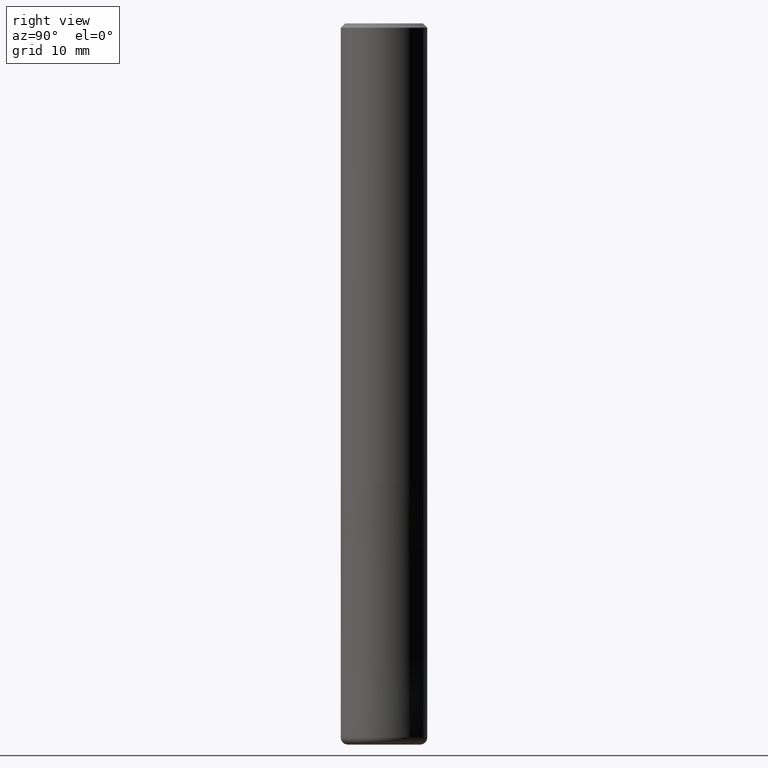
[diagram: clean part render]
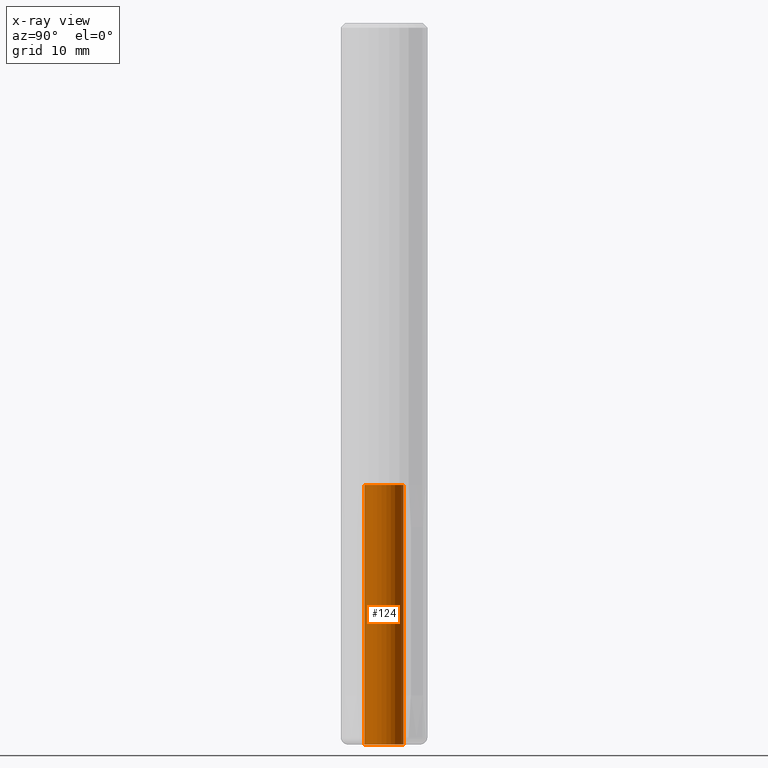
[diagram: x-ray — body ghosted, one internal face saturated and labeled with its STEP entity id]
A machine part, right view, then the same camera in x-ray: the body is ghosted and one INTERNAL B-rep face — a face not visible from any outside direction — is saturated and labeled: STEP entity #124.
In plain terms, the highlighted cylindrical surface (edge-blend (fillet) strip) has radius 2.7 mm, axis along (-0, -0, 1).
Its self-contained STEP definition (entity closure, byte-faithful):
#114=EDGE_CURVE('',#116,#132,#278,.T.);
#116=VERTEX_POINT('',#280);
#124=ADVANCED_FACE('',(#290),#291,.F.);
#132=VERTEX_POINT('',#299);
#134=EDGE_CURVE('',#192,#132,#301,.T.);
#192=VERTEX_POINT('',#368);
#222=EDGE_CURVE('',#224,#192,#403,.T.);
#224=VERTEX_POINT('',#405);
#226=EDGE_CURVE('',#116,#224,#407,.T.);
#278=CIRCLE('',#453,2.7);
#280=CARTESIAN_POINT('',(0.0,2.7,-64.0));
#290=FACE_OUTER_BOUND('',#466,.T.);
#291=CYLINDRICAL_SURFACE('',#467,2.7);
#299=CARTESIAN_POINT('',(3.30643715532042E-016,-2.7,-64.0));
#301=LINE('',#477,#478);
#368=CARTESIAN_POINT('',(3.30643715532042E-016,-2.7,-100.0));
#403=CIRCLE('',#607,2.7);
#405=CARTESIAN_POINT('',(0.0,2.7,-100.0));
#407=LINE('',#612,#613);
#453=AXIS2_PLACEMENT_3D('',#667,#668,#669);
#466=EDGE_LOOP('',(#688,#689,#690,#691));
#467=AXIS2_PLACEMENT_3D('',#692,#693,#694);
#477=CARTESIAN_POINT('',(3.30643715532042E-016,-2.7,-82.0));
#478=VECTOR('',#696,1.0);
#607=AXIS2_PLACEMENT_3D('',#825,#826,#827);
#612=CARTESIAN_POINT('',(-3.30643715532042E-016,2.7,-82.0));
#613=VECTOR('',#828,1.0);
#667=CARTESIAN_POINT('',(0.0,0.0,-64.0));
#668=DIRECTION('',(0.0,0.0,-1.0));
#669=DIRECTION('',(0.0,1.0,0.0));
#688=ORIENTED_EDGE('',*,*,#226,.T.);
#689=ORIENTED_EDGE('',*,*,#222,.T.);
#690=ORIENTED_EDGE('',*,*,#134,.T.);
#691=ORIENTED_EDGE('',*,*,#114,.F.);
#692=CARTESIAN_POINT('',(0.0,0.0,-82.0));
#693=DIRECTION('',(-0.0,-0.0,1.0));
#694=DIRECTION('',(0.0,1.0,0.0));
#696=DIRECTION('',(0.0,-0.0,1.0));
#825=CARTESIAN_POINT('',(0.0,0.0,-100.0));
#826=DIRECTION('',(0.0,0.0,-1.0));
#827=DIRECTION('',(0.0,1.0,0.0));
#828=DIRECTION('',(0.0,-0.0,-1.0));